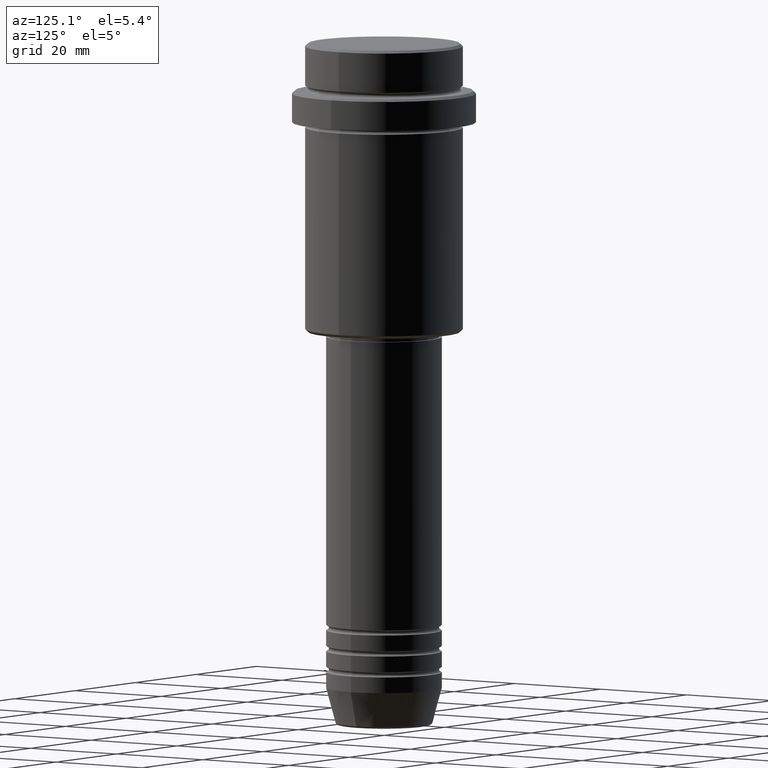
[diagram: clean part render]
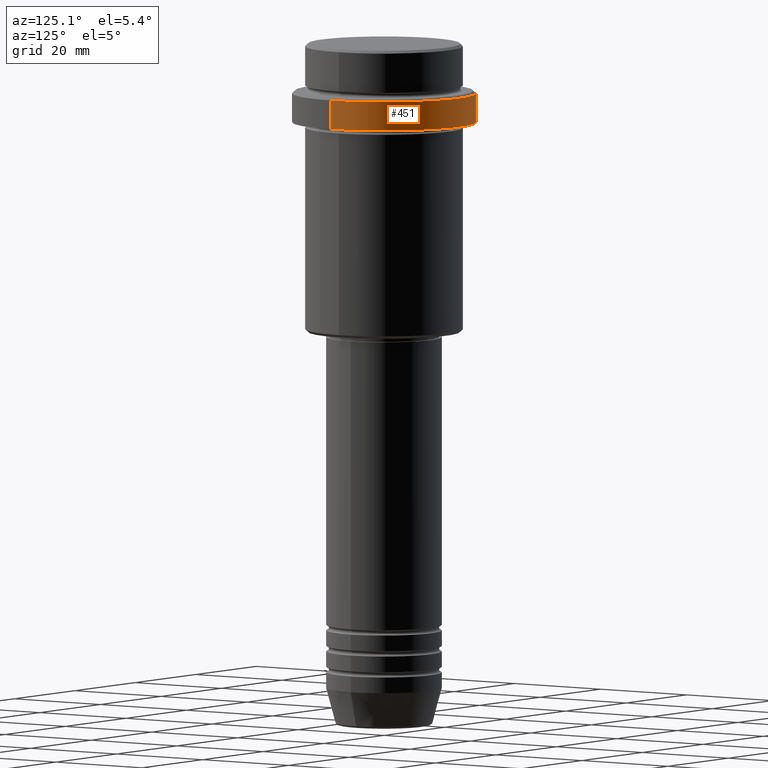
[diagram: same view with one face highlighted and labeled with its STEP entity id]
A machine part, auxiliary view. The second image highlights one B-rep face of the part: STEP entity #451.
In plain terms, the highlighted cylindrical surface (partial cylindrical patch) has radius 17.5 mm, axis along (-0, -0, 1).
Its self-contained STEP definition (entity closure, byte-faithful):
#3 = DIRECTION ( 'NONE',  ( 1.000000000000000000, 0.000000000000000000, 0.000000000000000000 ) ) ;
#96 = CARTESIAN_POINT ( 'NONE',  ( 0.000000000000000000, 0.000000000000000000, 0.000000000000000000 ) ) ;
#129 = DIRECTION ( 'NONE',  ( -0.000000000000000000, -0.000000000000000000, 1.000000000000000000 ) ) ;
#133 = AXIS2_PLACEMENT_3D ( 'NONE', #703, #1262, #1026 ) ;
#214 = CARTESIAN_POINT ( 'NONE',  ( -17.50000000000000000, 2.143131898507868248E-15, -15.00000000000000178 ) ) ;
#237 = EDGE_LOOP ( 'NONE', ( #553, #246, #549, #1009 ) ) ;
#242 = CARTESIAN_POINT ( 'NONE',  ( -17.50000000000000000, 2.143131898507868248E-15, -9.499999999999973355 ) ) ;
#246 = ORIENTED_EDGE ( 'NONE', *, *, #970, .T. ) ;
#451 = ADVANCED_FACE ( 'NONE', ( #764 ), #1074, .T. ) ;
#527 = CIRCLE ( 'NONE', #133, 17.50000000000000000 ) ;
#549 = ORIENTED_EDGE ( 'NONE', *, *, #1117, .T. ) ;
#553 = ORIENTED_EDGE ( 'NONE', *, *, #965, .T. ) ;
#646 = VERTEX_POINT ( 'NONE', #242 ) ;
#660 = VECTOR ( 'NONE', #682, 1000.000000000000000 ) ;
#682 = DIRECTION ( 'NONE',  ( -0.000000000000000000, -0.000000000000000000, 1.000000000000000000 ) ) ;
#703 = CARTESIAN_POINT ( 'NONE',  ( 0.000000000000000000, 0.000000000000000000, -9.499999999999973355 ) ) ;
#764 = FACE_OUTER_BOUND ( 'NONE', #237, .T. ) ;
#779 = DIRECTION ( 'NONE',  ( -0.000000000000000000, -0.000000000000000000, 1.000000000000000000 ) ) ;
#827 = VERTEX_POINT ( 'NONE', #1172 ) ;
#875 = CARTESIAN_POINT ( 'NONE',  ( -17.50000000000000000, 2.143131898507868248E-15, 0.000000000000000000 ) ) ;
#934 = VERTEX_POINT ( 'NONE', #214 ) ;
#965 = EDGE_CURVE ( 'NONE', #1125, #934, #1001, .T. ) ;
#970 = EDGE_CURVE ( 'NONE', #934, #646, #1334, .T. ) ;
#975 = DIRECTION ( 'NONE',  ( -0.000000000000000000, -0.000000000000000000, 1.000000000000000000 ) ) ;
#989 = EDGE_CURVE ( 'NONE', #1125, #827, #1010, .T. ) ;
#1001 = CIRCLE ( 'NONE', #1276, 17.50000000000000000 ) ;
#1009 = ORIENTED_EDGE ( 'NONE', *, *, #989, .F. ) ;
#1010 = LINE ( 'NONE', #1211, #1365 ) ;
#1026 = DIRECTION ( 'NONE',  ( 1.000000000000000000, 0.000000000000000000, 0.000000000000000000 ) ) ;
#1047 = AXIS2_PLACEMENT_3D ( 'NONE', #96, #975, #1095 ) ;
#1074 = CYLINDRICAL_SURFACE ( 'NONE', #1047, 17.50000000000000000 ) ;
#1095 = DIRECTION ( 'NONE',  ( 1.000000000000000000, 0.000000000000000000, 0.000000000000000000 ) ) ;
#1117 = EDGE_CURVE ( 'NONE', #646, #827, #527, .T. ) ;
#1125 = VERTEX_POINT ( 'NONE', #1143 ) ;
#1143 = CARTESIAN_POINT ( 'NONE',  ( 17.50000000000000000, 0.000000000000000000, -15.00000000000000178 ) ) ;
#1172 = CARTESIAN_POINT ( 'NONE',  ( 17.50000000000000000, 0.000000000000000000, -9.499999999999973355 ) ) ;
#1205 = CARTESIAN_POINT ( 'NONE',  ( 0.000000000000000000, 0.000000000000000000, -15.00000000000000178 ) ) ;
#1211 = CARTESIAN_POINT ( 'NONE',  ( 17.50000000000000000, 0.000000000000000000, 0.000000000000000000 ) ) ;
#1262 = DIRECTION ( 'NONE',  ( 0.000000000000000000, 0.000000000000000000, -1.000000000000000000 ) ) ;
#1276 = AXIS2_PLACEMENT_3D ( 'NONE', #1205, #779, #3 ) ;
#1334 = LINE ( 'NONE', #875, #660 ) ;
#1365 = VECTOR ( 'NONE', #129, 1000.000000000000000 ) ;